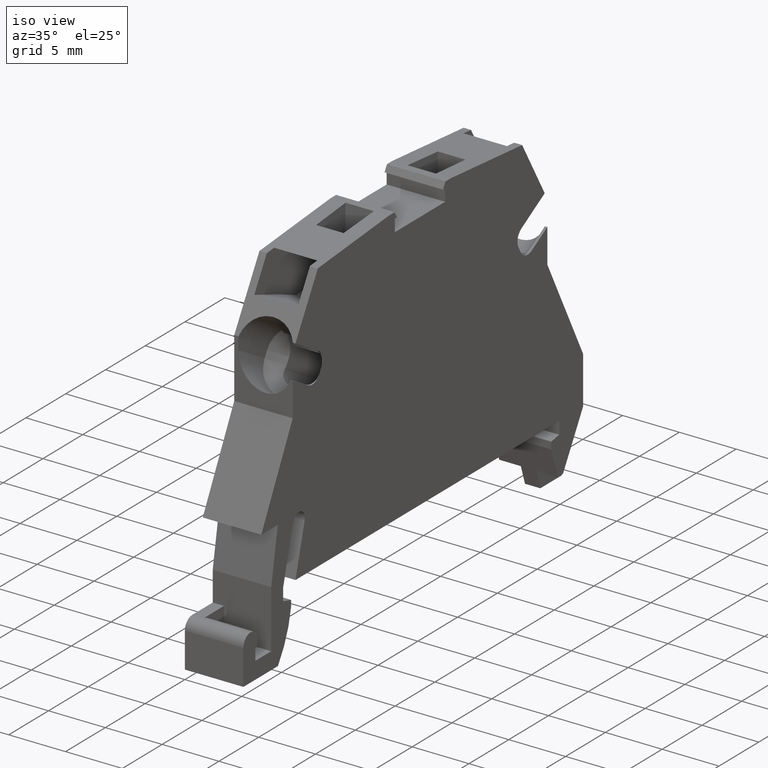
[diagram: clean part render]
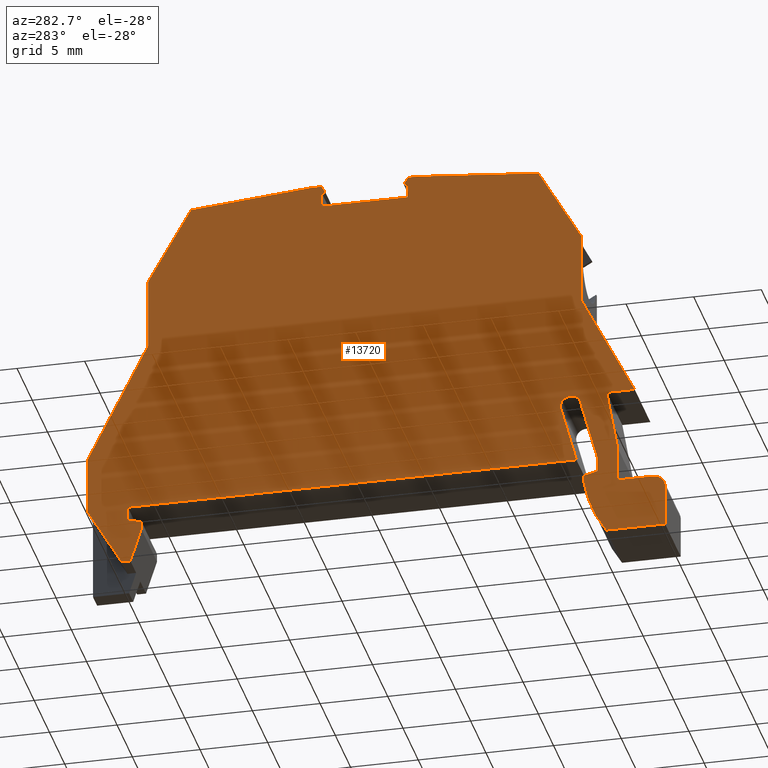
[diagram: tour spotlight — one face highlighted and labeled with its STEP entity id]
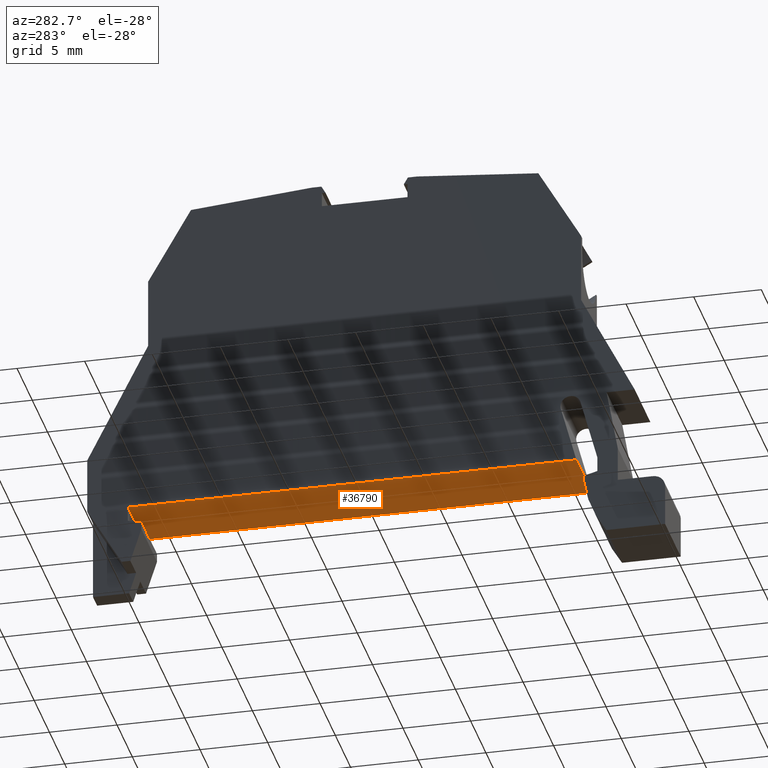
[diagram: tour spotlight — one face highlighted and labeled with its STEP entity id]
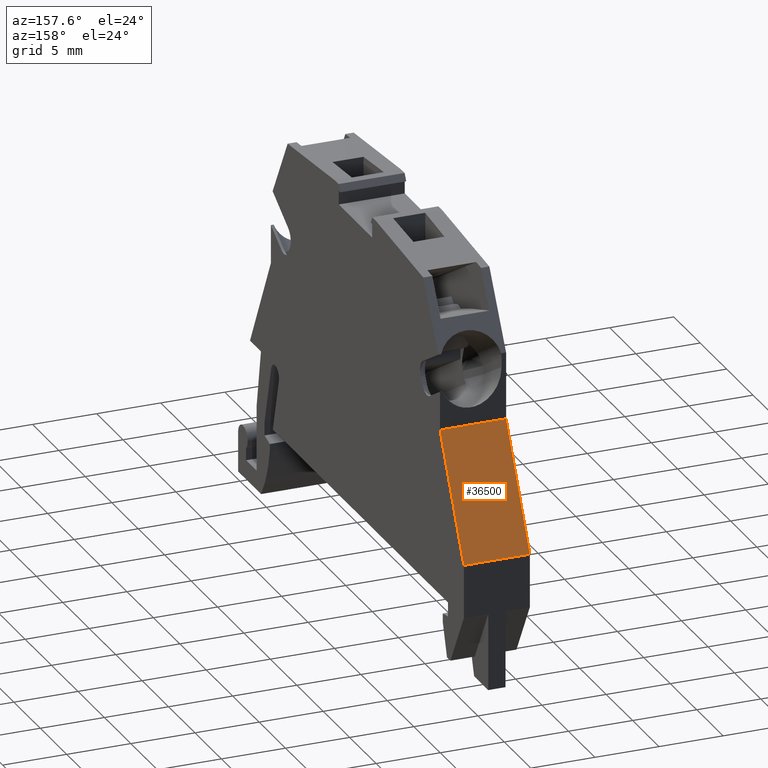
[diagram: tour spotlight — one face highlighted and labeled with its STEP entity id]
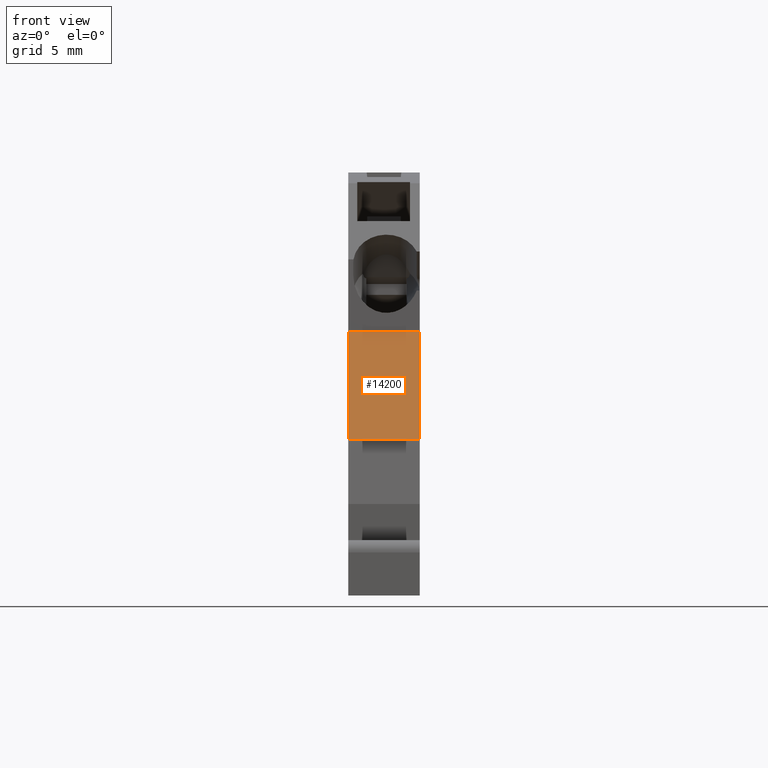
[diagram: tour spotlight — one face highlighted and labeled with its STEP entity id]
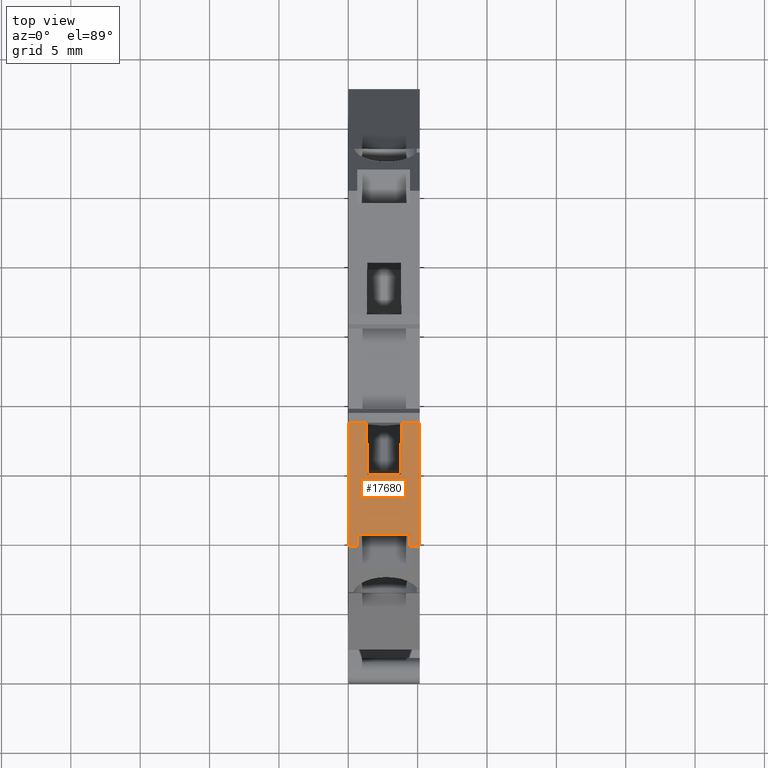
[diagram: tour spotlight — one face highlighted and labeled with its STEP entity id]
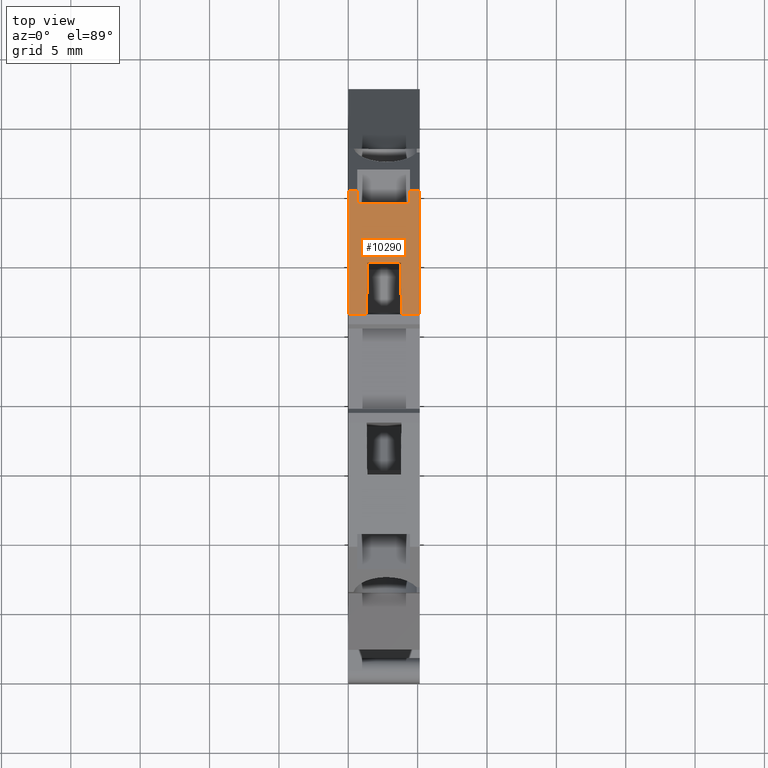
[diagram: tour spotlight — one face highlighted and labeled with its STEP entity id]
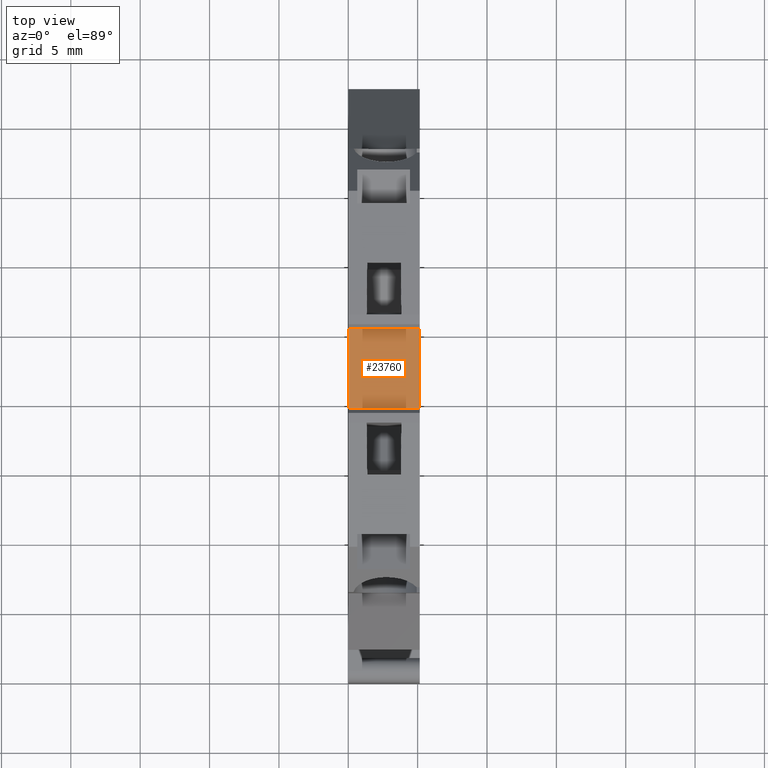
[diagram: tour spotlight — one face highlighted and labeled with its STEP entity id]
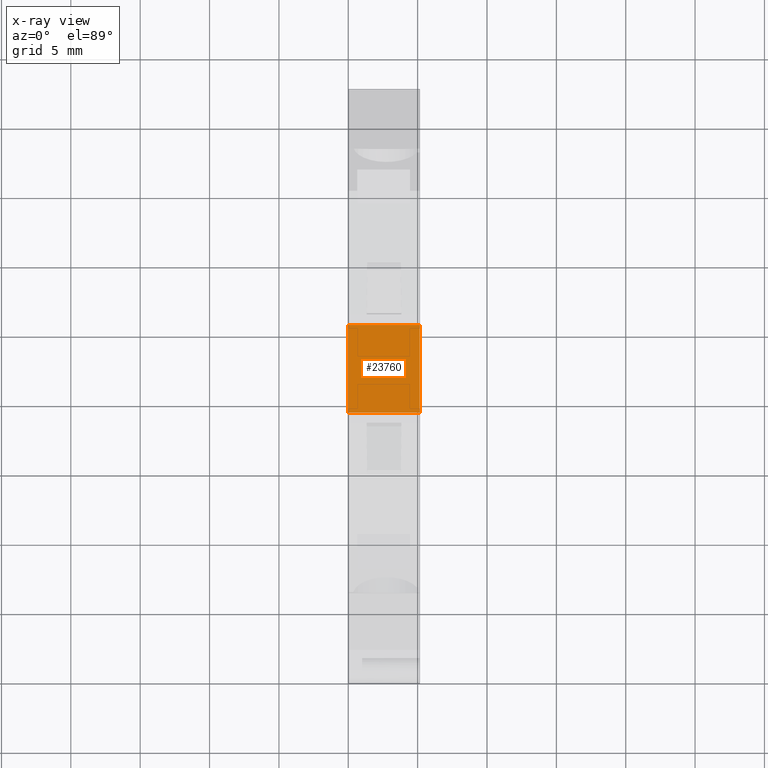
[diagram: x-ray of the same camera — body ghosted, this tour face saturated]
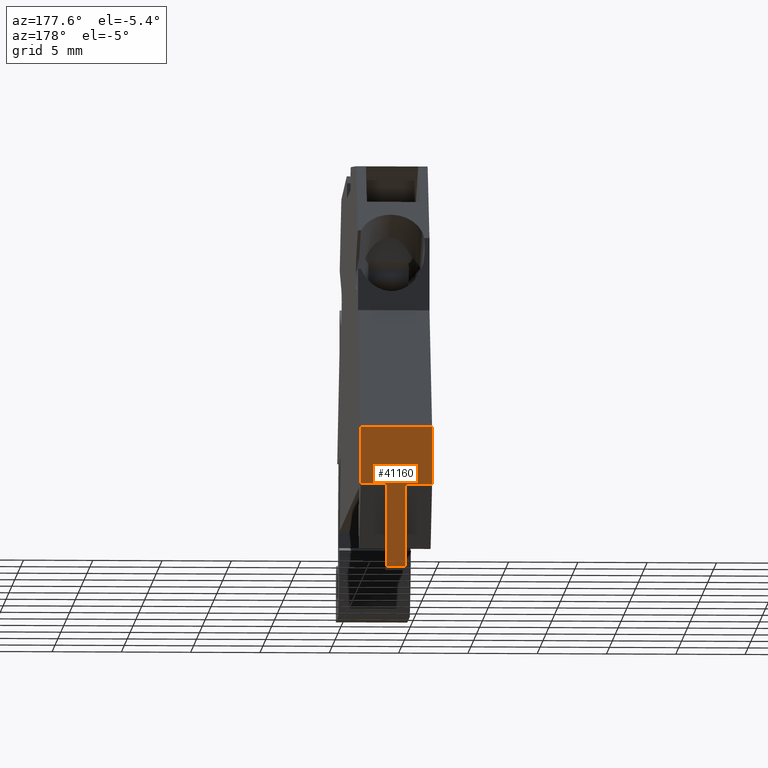
[diagram: tour spotlight — one face highlighted and labeled with its STEP entity id]
A machine part: a face-by-face anatomy tour. The part has 125 B-rep faces; the first image is the clean iso view, then the 8 largest visible faces are spotlighted one at a time (largest first), each with its STEP entity span.

Face 1 — auxiliary view, entity #13720. In plain terms, the highlighted planar face has unit normal (1, -0, 0).
Definition (entity closure, byte-faithful):
#760=CARTESIAN_POINT('',(85.9288839072388,139.943633130587,
14.375000000007));
#770=VERTEX_POINT('',#760);
#800=CARTESIAN_POINT('',(70.3110332415966,137.189784677558,
14.374999999999));
#810=DIRECTION('',(0.984807753012208,0.17364817766693,
5.06342142665721E-13));
#820=VECTOR('',#810,1.);
#830=LINE('',#800,#820);
#840=CARTESIAN_POINT('',(81.2869033162138,139.125126708464,
14.3750000000047));
#850=VERTEX_POINT('',#840);
#860=EDGE_CURVE('',#850,#770,#830,.T.);
#9850=CARTESIAN_POINT('',(62.0288839072381,117.343633130581,
14.3749999999949));
#9860=VERTEX_POINT('',#9850);
#9890=CARTESIAN_POINT('',(62.4208034268893,112.863972522483,
14.3749999999952));
#9900=DIRECTION('',(-0.0871557427474359,0.996194698091765,
-5.46381874115445E-14));
#9910=VECTOR('',#9900,1.);
#9920=LINE('',#9890,#9910);
#9930=CARTESIAN_POINT('',(62.8104688544808,108.410076304523,
14.3749999999954));
#9940=VERTEX_POINT('',#9930);
#9950=EDGE_CURVE('',#9940,#9860,#9920,.T.);
#10480=CARTESIAN_POINT('',(62.0288839072382,118.047445109044,
14.3749999999949));
#10490=VERTEX_POINT('',#10480);
#10520=CARTESIAN_POINT('',(62.0288839072368,112.637697682311,
14.374999999995));
#10530=DIRECTION('',(-2.2815083156047E-13,-1.,9.71445146564682E-15));
#10540=VECTOR('',#10530,1.);
#10550=LINE('',#10520,#10540);
#10560=EDGE_CURVE('',#10490,#9860,#10550,.T.);
#10750=CARTESIAN_POINT('',(67.5229967701355,130.371409375845,
14.3749999999977));
#10760=DIRECTION('',(5.25524068706041E-13,-2.79961151606987E-25,-1.));
#10770=DIRECTION('',(5.25579579857549E-13,-1.,5.56165870842539E-25));
#10780=AXIS2_PLACEMENT_3D('',#10750,#10760,#10770);
#10790=PLANE('',#10780);
#10800=CARTESIAN_POINT('',(81.2869033162523,-12.1795821260373,
14.3750000000061));
#10810=DIRECTION('',(2.5462965069778E-13,-1.,9.71445146589583E-15));
#10820=VECTOR('',#10810,1.);
#10830=LINE('',#10800,#10820);
#10840=CARTESIAN_POINT('',(81.2869033162133,141.196541457125,
14.3750000000046));
#10850=VERTEX_POINT('',#10840);
#10860=EDGE_CURVE('',#10850,#850,#10830,.T.);
#10870=ORIENTED_EDGE('',*,*,#10860,.F.);
#10880=ORIENTED_EDGE('',*,*,#860,.F.);
#10890=CARTESIAN_POINT('',(-23.21922643331,139.943633130545,
14.3749999999507));
#10900=DIRECTION('',(1.,3.81472631261204E-13,5.15866206278215E-13));
#10910=VECTOR('',#10900,1.);
#10920=LINE('',#10890,#10910);
#10930=CARTESIAN_POINT('',(88.5288839072345,139.943633130588,
14.3750000000084));
#10940=VERTEX_POINT('',#10930);
#10950=EDGE_CURVE('',#770,#10940,#10920,.T.);
#10960=ORIENTED_EDGE('',*,*,#10950,.F.);
#10970=CARTESIAN_POINT('',(88.5288839072568,-7.9984226823472,
14.3750000000098));
#10980=DIRECTION('',(-1.50324197534246E-13,1.,-9.71445146584201E-15));
#10990=VECTOR('',#10980,1.);
#11000=LINE('',#10970,#10990);
#11010=CARTESIAN_POINT('',(88.5288839072388,142.543633130588,
14.3750000000084));
#11020=VERTEX_POINT('',#11010);
#11030=EDGE_CURVE('',#10940,#11020,#11000,.T.);
#11040=ORIENTED_EDGE('',*,*,#11030,.F.);
#11050=CARTESIAN_POINT('',(89.4288839072389,142.543633130589,
14.3750000000088));
#11060=DIRECTION('',(5.03237389910914E-13,-2.85605513013457E-25,-1.));
#11070=DIRECTION('',(-1.11022302462516E-16,-1.,2.85555025915523E-25));
#11080=AXIS2_PLACEMENT_3D('',#11050,#11060,#11070);
#11090=CIRCLE('',#11080,0.900000000000114);
#11100=CARTESIAN_POINT('',(89.4288839072389,143.443633130588,
14.3750000000088));
#11110=VERTEX_POINT('',#11100);
#11120=EDGE_CURVE('',#11020,#11110,#11090,.T.);
#11130=ORIENTED_EDGE('',*,*,#11120,.F.);
#11140=CARTESIAN_POINT('',(-25.2399523755023,143.443633130588,
14.3749999999497));
#11150=DIRECTION('',(1.,-1.11022302462516E-16,5.15866206278218E-13));
#11160=VECTOR('',#11150,1.);
#11170=LINE('',#11140,#11160);
#11180=CARTESIAN_POINT('',(92.5288839072389,143.443633130588,
14.3750000000104));
#11190=VERTEX_POINT('',#11180);
#11200=EDGE_CURVE('',#11110,#11190,#11170,.T.);
#11210=ORIENTED_EDGE('',*,*,#11200,.F.);
#11220=CARTESIAN_POINT('',(92.5288839072383,-5.68902160559516,
14.3750000000119));
#11230=DIRECTION('',(-4.05231403988182E-15,-1.,9.71445146576239E-15));
#11240=VECTOR('',#11230,1.);
#11250=LINE('',#11220,#11240);
#11260=CARTESIAN_POINT('',(92.5288839072388,139.102592649176,
14.3750000000103));
#11270=VERTEX_POINT('',#11260);
#11280=EDGE_CURVE('',#11190,#11270,#11250,.T.);
#11290=ORIENTED_EDGE('',*,*,#11280,.F.);
#11300=CARTESIAN_POINT('',(87.0134839072388,146.83760155932,
14.3750000000075));
#11310=DIRECTION('',(5.03237389910914E-13,-2.85605513013457E-25,-1.));
#11320=DIRECTION('',(-1.11022302462516E-16,-1.,2.85555025915523E-25));
#11330=AXIS2_PLACEMENT_3D('',#11300,#11310,#11320);
#11340=CIRCLE('',#11330,9.5);
#11350=CARTESIAN_POINT('',(88.4288839072388,137.443633130588,
14.3750000000082));
#11360=VERTEX_POINT('',#11350);
#11370=EDGE_CURVE('',#11270,#11360,#11340,.T.);
#11380=ORIENTED_EDGE('',*,*,#11370,.F.);
#11390=CARTESIAN_POINT('',(-21.7758507603582,137.443633130588,
14.3749999999515));
#11400=DIRECTION('',(-1.,1.11022302462516E-16,-5.15866206278218E-13));
#11410=VECTOR('',#11400,1.);
#11420=LINE('',#11390,#11410);
#11430=CARTESIAN_POINT('',(87.8968330996699,137.443633130588,
14.3750000000081));
#11440=VERTEX_POINT('',#11430);
#11450=EDGE_CURVE('',#11360,#11440,#11420,.T.);
#11460=ORIENTED_EDGE('',*,*,#11450,.F.);
#11470=CARTESIAN_POINT('',(121.731458357265,11.1710926141889,
14.3750000000268));
#11480=DIRECTION('',(-0.258819045102521,0.965925826289068,
-1.42899438468602E-13));
#11490=VECTOR('',#11480,1.);
#11500=LINE('',#11470,#11490);
#11510=CARTESIAN_POINT('',(87.6288839072396,138.443633130585,
14.3750000000079));
#11520=VERTEX_POINT('',#11510);
#11530=EDGE_CURVE('',#11440,#11520,#11500,.T.);
#11540=ORIENTED_EDGE('',*,*,#11530,.F.);
#11550=CARTESIAN_POINT('',(-22.3532010295472,138.443633130585,
14.3749999999512));
#11560=DIRECTION('',(-1.,1.11022302462516E-16,-5.15866206278218E-13));
#11570=VECTOR('',#11560,1.);
#11580=LINE('',#11550,#11570);
#11590=CARTESIAN_POINT('',(86.5288839072389,138.443633130585,
14.3750000000074));
#11600=VERTEX_POINT('',#11590);
#11610=EDGE_CURVE('',#11520,#11600,#11580,.T.);
#11620=ORIENTED_EDGE('',*,*,#11610,.F.);
#11630=CARTESIAN_POINT('',(-7.76576766500975,113.177457391227,
14.374999999959));
#11640=DIRECTION('',(-0.965925826289068,-0.258819045102521,
-4.95774206501831E-13));
#11650=VECTOR('',#11640,1.);
#11660=LINE('',#11630,#11650);
#11670=CARTESIAN_POINT('',(81.8347696234077,137.185848999053,
14.375000000005));
#11680=VERTEX_POINT('',#11670);
#11690=EDGE_CURVE('',#11600,#11680,#11660,.T.);
#11700=ORIENTED_EDGE('',*,*,#11690,.F.);
#11710=CARTESIAN_POINT('',(82.0288839072346,136.461404629337,
14.3750000000051));
#11720=DIRECTION('',(-5.03237389910914E-13,2.85605513013457E-25,1.));
#11730=DIRECTION('',(-0.258819045102662,0.965925826289031,
-1.30247420716975E-13));
#11740=AXIS2_PLACEMENT_3D('',#11710,#11720,#11730);
#11750=CIRCLE('',#11740,0.750000000000012);
#11760=CARTESIAN_POINT('',(82.2229981910615,135.73696025962,
14.3750000000052));
#11770=VERTEX_POINT('',#11760);
#11780=EDGE_CURVE('',#11680,#11770,#11750,.T.);
#11790=ORIENTED_EDGE('',*,*,#11780,.F.);
#11800=CARTESIAN_POINT('',(-6.98931052970099,111.832594182976,
14.3749999999594));
#11810=DIRECTION('',(0.965925826289068,0.258819045102521,
4.95774206501831E-13));
#11820=VECTOR('',#11810,1.);
#11830=LINE('',#11800,#11820);
#11840=CARTESIAN_POINT('',(86.5288839072389,136.89071885997,
14.3750000000074));
#11850=VERTEX_POINT('',#11840);
#11860=EDGE_CURVE('',#11770,#11850,#11830,.T.);
#11870=ORIENTED_EDGE('',*,*,#11860,.F.);
#11880=CARTESIAN_POINT('',(86.5288839072389,-9.15312322073889,
14.3750000000088));
#11890=DIRECTION('',(-1.11022302462516E-16,-1.,9.71445146576441E-15));
#11900=VECTOR('',#11890,1.);
#11910=LINE('',#11880,#11900);
#11920=CARTESIAN_POINT('',(86.5288839072389,103.743633130585,
14.3750000000077));
#11930=VERTEX_POINT('',#11920);
#11940=EDGE_CURVE('',#11850,#11930,#11910,.T.);
#11950=ORIENTED_EDGE('',*,*,#11940,.F.);
#11960=CARTESIAN_POINT('',(-2.31914668863053,103.743633130585,
14.3749999999619));
#11970=DIRECTION('',(1.,-1.11022302462516E-16,5.15866206278218E-13));
#11980=VECTOR('',#11970,1.);
#11990=LINE('',#11960,#11980);
#12000=CARTESIAN_POINT('',(87.6288839072388,103.743633130585,
14.3750000000083));
#12010=VERTEX_POINT('',#12000);
#12020=EDGE_CURVE('',#11930,#12010,#11990,.T.);
#12030=ORIENTED_EDGE('',*,*,#12020,.F.);
#12040=CARTESIAN_POINT('',(65.5905683264532,-21.2418653577049,
14.3749999999981));
#12050=DIRECTION('',(0.173648177666953,0.984807753012204,
8.00123595204312E-14));
#12060=VECTOR('',#12050,1.);
#12070=LINE('',#12040,#12060);
#12080=CARTESIAN_POINT('',(87.8052108879473,104.743633130585,
14.3750000000083));
#12090=VERTEX_POINT('',#12080);
#12100=EDGE_CURVE('',#12010,#12090,#12070,.T.);
#12110=ORIENTED_EDGE('',*,*,#12100,.F.);
#12120=CARTESIAN_POINT('',(-2.8964969578218,104.743633130586,
14.3749999999616));
#12130=DIRECTION('',(1.,-1.16573417585641E-14,5.15866206278219E-13));
#12140=VECTOR('',#12130,1.);
#12150=LINE('',#12120,#12140);
#12160=CARTESIAN_POINT('',(88.4288839072389,104.743633130585,
14.3750000000087));
#12170=VERTEX_POINT('',#12160);
#12180=EDGE_CURVE('',#12090,#12170,#12150,.T.);
#12190=ORIENTED_EDGE('',*,*,#12180,.F.);
#12200=CARTESIAN_POINT('',(213.446667012653,64.1228930202564,
14.3750000000736));
#12210=DIRECTION('',(0.95105651629514,-0.309016994374991,
4.93619847611305E-13));
#12220=VECTOR('',#12210,1.);
#12230=LINE('',#12200,#12220);
#12240=CARTESIAN_POINT('',(90.9288839072475,103.93133389,14.37500000001)
);
#12250=VERTEX_POINT('',#12240);
#12260=EDGE_CURVE('',#12170,#12250,#12230,.T.);
#12270=ORIENTED_EDGE('',*,*,#12260,.F.);
#12280=CARTESIAN_POINT('',(90.9288839072395,129.323120461923,
14.3750000000097));
#12290=DIRECTION('',(3.14470671725076E-13,-1.,9.71445146592673E-15));
#12300=VECTOR('',#12290,1.);
#12310=LINE('',#12280,#12300);
#12320=CARTESIAN_POINT('',(90.9288839072477,103.283974315021,
14.37500000001));
#12330=VERTEX_POINT('',#12320);
#12340=EDGE_CURVE('',#12250,#12330,#12310,.T.);
#12350=ORIENTED_EDGE('',*,*,#12340,.F.);
#12360=CARTESIAN_POINT('',(90.1471424629641,102.832635681727,
14.3750000000096));
#12370=DIRECTION('',(-0.866025403784281,-0.500000000000273,
-4.41896013857874E-13));
#12380=VECTOR('',#12370,1.);
#12390=LINE('',#12360,#12380);
#12400=CARTESIAN_POINT('',(86.5288839072485,100.743633130585,
14.3750000000077));
#12410=VERTEX_POINT('',#12400);
#12420=EDGE_CURVE('',#12330,#12410,#12390,.T.);
#12430=ORIENTED_EDGE('',*,*,#12420,.F.);
#12440=CARTESIAN_POINT('',(-0.587095881058488,100.743633130585,
14.3749999999628));
#12450=DIRECTION('',(-1.,1.11022302462516E-16,-5.15866206278218E-13));
#12460=VECTOR('',#12450,1.);
#12470=LINE('',#12440,#12460);
#12480=CARTESIAN_POINT('',(82.3606311820096,100.743633130585,
14.3750000000056));
#12490=VERTEX_POINT('',#12480);
#12500=EDGE_CURVE('',#12410,#12490,#12470,.T.);
#12510=ORIENTED_EDGE('',*,*,#12500,.F.);
#12520=CARTESIAN_POINT('',(185.68734669661,48.0960419632388,
14.3750000000594));
#12530=DIRECTION('',(-0.891006524188414,0.453990499739456,
-4.64050424077856E-13));
#12540=VECTOR('',#12530,1.);
#12550=LINE('',#12520,#12540);
#12560=CARTESIAN_POINT('',(73.5288839072387,105.243633130583,
14.375000000001));
#12570=VERTEX_POINT('',#12560);
#12580=EDGE_CURVE('',#12490,#12570,#12550,.T.);
#12590=ORIENTED_EDGE('',*,*,#12580,.F.);
#12600=CARTESIAN_POINT('',(88.7551524368475,105.243633130586,
14.3750000000088));
#12610=DIRECTION('',(-1.,-1.94400051611865E-13,-5.15866206278217E-13));
#12620=VECTOR('',#12610,1.);
#12630=LINE('',#12600,#12620);
#12640=CARTESIAN_POINT('',(68.2949093110267,105.243633130582,
14.3749999999983));
#12650=VERTEX_POINT('',#12640);
#12660=EDGE_CURVE('',#12570,#12650,#12630,.T.);
#12670=ORIENTED_EDGE('',*,*,#12660,.F.);
#12680=CARTESIAN_POINT('',(58.7584488701145,110.749511133258,
14.3749999999933));
#12690=DIRECTION('',(-0.866025403784484,0.499999999999921,
-4.51610465323746E-13));
#12700=VECTOR('',#12690,1.);
#12710=LINE('',#12680,#12700);
#12720=EDGE_CURVE('',#12650,#9940,#12710,.T.);
#12730=ORIENTED_EDGE('',*,*,#12720,.F.);
#12740=ORIENTED_EDGE('',*,*,#9950,.F.);
#12750=ORIENTED_EDGE('',*,*,#10560,.T.);
#12760=CARTESIAN_POINT('',(76.5293720851754,126.419305861821,
14.3750000000023));
#12770=DIRECTION('',(-0.866025403787968,-0.499999999993887,
-4.41896013859838E-13));
#12780=VECTOR('',#12770,1.);
#12790=LINE('',#12760,#12780);
#12800=CARTESIAN_POINT('',(62.5588839072415,118.353440751711,
14.3749999999952));
#12810=VERTEX_POINT('',#12800);
#12820=EDGE_CURVE('',#12810,#10490,#12790,.T.);
#12830=ORIENTED_EDGE('',*,*,#12820,.T.);
#12840=CARTESIAN_POINT('',(62.5588839072385,112.943693324983,
14.3749999999952));
#12850=DIRECTION('',(5.40234523782601E-13,1.,-9.71445146548587E-15));
#12860=VECTOR('',#12850,1.);
#12870=LINE('',#12840,#12860);
#12880=CARTESIAN_POINT('',(62.5588839072413,118.081133130579,
14.3749999999952));
#12890=VERTEX_POINT('',#12880);
#12900=EDGE_CURVE('',#12890,#12810,#12870,.T.);
#12910=ORIENTED_EDGE('',*,*,#12900,.T.);
#12920=CARTESIAN_POINT('',(81.3434183561167,118.081133130578,
14.3750000000049));
#12930=DIRECTION('',(-1.,4.70179450928754E-14,-5.15866206278219E-13));
#12940=VECTOR('',#12930,1.);
#12950=LINE('',#12920,#12940);
#12960=CARTESIAN_POINT('',(63.6288839072413,118.081133130579,
14.3749999999957));
#12970=VERTEX_POINT('',#12960);
#12980=EDGE_CURVE('',#12970,#12890,#12950,.T.);
#12990=ORIENTED_EDGE('',*,*,#12980,.T.);
#13000=CARTESIAN_POINT('',(63.6288839072425,113.561458113019,
14.3749999999958));
#13010=DIRECTION('',(2.55129251058861E-13,-1.,9.71445146589613E-15));
#13020=VECTOR('',#13010,1.);
#13030=LINE('',#13000,#13020);
#13040=CARTESIAN_POINT('',(63.6288839072397,124.406133130583,
14.3749999999957));
#13050=VERTEX_POINT('',#13040);
#13060=EDGE_CURVE('',#13050,#12970,#13030,.T.);
#13070=ORIENTED_EDGE('',*,*,#13060,.T.);
#13080=CARTESIAN_POINT('',(77.6916779034792,124.406133130589,
14.3750000000029));
#13090=DIRECTION('',(1.,4.35651514862911E-13,5.15866206278214E-13));
#13100=VECTOR('',#13090,1.);
#13110=LINE('',#13080,#13100);
#13120=CARTESIAN_POINT('',(62.5588839072401,124.406133130583,
14.3749999999951));
#13130=VERTEX_POINT('',#13120);
#13140=EDGE_CURVE('',#13130,#13050,#13110,.T.);
#13150=ORIENTED_EDGE('',*,*,#13140,.T.);
#13160=CARTESIAN_POINT('',(62.5588839072507,112.94369332499,
14.3749999999952));
#13170=DIRECTION('',(-9.29034627006331E-13,1.,-9.71445146624383E-15));
#13180=VECTOR('',#13170,1.);
#13190=LINE('',#13160,#13180);
#13200=CARTESIAN_POINT('',(62.5588839072404,124.13382550945,
14.3749999999951));
#13210=VERTEX_POINT('',#13200);
#13220=EDGE_CURVE('',#13210,#13130,#13190,.T.);
#13230=ORIENTED_EDGE('',*,*,#13220,.T.);
#13240=CARTESIAN_POINT('',(72.2498226507684,118.53875941727,
14.3750000000002));
#13250=DIRECTION('',(0.866025403788162,-0.499999999993551,
4.51610465325581E-13));
#13260=VECTOR('',#13250,1.);
#13270=LINE('',#13240,#13260);
#13280=CARTESIAN_POINT('',(62.028883907237,124.439821152117,
14.3749999999948));
#13290=VERTEX_POINT('',#13280);
#13300=EDGE_CURVE('',#13290,#13210,#13270,.T.);
#13310=ORIENTED_EDGE('',*,*,#13300,.T.);
#13320=CARTESIAN_POINT('',(62.0288839072443,112.637697682315,
14.374999999995));
#13330=DIRECTION('',(6.16895423632968E-13,-1.,9.71445146608273E-15));
#13340=VECTOR('',#13330,1.);
#13350=LINE('',#13320,#13340);
#13360=CARTESIAN_POINT('',(62.0288839072365,125.143633130578,
14.3749999999949));
#13370=VERTEX_POINT('',#13360);
#13380=EDGE_CURVE('',#13370,#13290,#13350,.T.);
#13390=ORIENTED_EDGE('',*,*,#13380,.T.);
#13400=CARTESIAN_POINT('',(60.8765501004583,111.97239744877,
14.3749999999944));
#13410=DIRECTION('',(-0.0871557427470437,-0.996194698091799,
-3.5283217321213E-14));
#13420=VECTOR('',#13410,1.);
#13430=LINE('',#13400,#13420);
#13440=CARTESIAN_POINT('',(62.8104688544766,134.077189956647,
14.3749999999953));
#13450=VERTEX_POINT('',#13440);
#13460=EDGE_CURVE('',#13450,#13370,#13430,.T.);
#13470=ORIENTED_EDGE('',*,*,#13460,.T.);
#13480=CARTESIAN_POINT('',(69.7836851948095,138.103178287864,
14.3749999999987));
#13490=DIRECTION('',(-0.866025403783959,-0.500000000000831,
-4.41896013857703E-13));
#13500=VECTOR('',#13490,1.);
#13510=LINE('',#13480,#13500);
#13520=CARTESIAN_POINT('',(68.294909311,137.243633130582,14.374999999998
));
#13530=VERTEX_POINT('',#13520);
#13540=EDGE_CURVE('',#13530,#13450,#13510,.T.);
#13550=ORIENTED_EDGE('',*,*,#13540,.T.);
#13560=CARTESIAN_POINT('',(70.2799438227478,137.243633130582,
14.374999999999));
#13570=DIRECTION('',(-1.,-1.94233518158171E-13,-5.15866206278217E-13));
#13580=VECTOR('',#13570,1.);
#13590=LINE('',#13560,#13580);
#13600=CARTESIAN_POINT('',(73.5288839072437,137.243633130583,
14.3750000000007));
#13610=VERTEX_POINT('',#13600);
#13620=EDGE_CURVE('',#13610,#13530,#13590,.T.);
#13630=ORIENTED_EDGE('',*,*,#13620,.T.);
#13640=CARTESIAN_POINT('',(-0.0232168194473985,99.7669659465524,
14.3749999999631));
#13650=DIRECTION('',(0.891006524188349,0.453990499739584,
4.55229886726547E-13));
#13660=VECTOR('',#13650,1.);
#13670=LINE('',#13640,#13660);
#13680=EDGE_CURVE('',#13610,#10850,#13670,.T.);
#13690=ORIENTED_EDGE('',*,*,#13680,.F.);
#13700=EDGE_LOOP('',(#13690,#13630,#13550,#13470,#13390,#13310,#13230,
#13150,#13070,#12990,#12910,#12830,#12750,#12740,#12730,#12670,#12590,
#12510,#12430,#12350,#12270,#12190,#12110,#12030,#11950,#11870,#11790,
#11700,#11620,#11540,#11460,#11380,#11290,#11210,#11130,#11040,#10960,
#10880,#10870));
#13710=FACE_OUTER_BOUND('',#13700,.T.);
#13720=ADVANCED_FACE('',(#13710),#10790,.F.);

Face 2 — auxiliary view, entity #36790. In plain terms, the highlighted planar face has unit normal (-0, -0, 1).
Definition (entity closure, byte-faithful):
#4440=CARTESIAN_POINT('',(86.5288839072415,103.743633130585,
9.22500000000719));
#4450=VERTEX_POINT('',#4440);
#4480=CARTESIAN_POINT('',(86.5288839072415,127.198249331305,
9.22500000000722));
#4490=DIRECTION('',(5.55111512312578E-17,1.,-2.85656000111391E-25));
#4500=VECTOR('',#4490,1.);
#4510=LINE('',#4480,#4500);
#4520=CARTESIAN_POINT('',(86.5288839072415,136.89071885997,
9.22500000000687));
#4530=VERTEX_POINT('',#4520);
#4540=EDGE_CURVE('',#4450,#4530,#4510,.T.);
#11840=CARTESIAN_POINT('',(86.5288839072389,136.89071885997,
14.3750000000074));
#11850=VERTEX_POINT('',#11840);
#11880=CARTESIAN_POINT('',(86.5288839072389,-9.15312322073889,
14.3750000000088));
#11890=DIRECTION('',(-1.11022302462516E-16,-1.,9.71445146576441E-15));
#11900=VECTOR('',#11890,1.);
#11910=LINE('',#11880,#11900);
#11920=CARTESIAN_POINT('',(86.5288839072389,103.743633130585,
14.3750000000077));
#11930=VERTEX_POINT('',#11920);
#11940=EDGE_CURVE('',#11850,#11930,#11910,.T.);
#36580=CARTESIAN_POINT('',(86.5288839072415,103.743633130585,
9.22500000000721));
#36590=DIRECTION('',(-1.,5.55111512312578E-17,-5.03237389910914E-13));
#36600=DIRECTION('',(-5.55111512312578E-17,-1.,2.85656000111391E-25));
#36610=AXIS2_PLACEMENT_3D('',#36580,#36590,#36600);
#36620=PLANE('',#36610);
#36630=ORIENTED_EDGE('',*,*,#4540,.T.);
#36640=CARTESIAN_POINT('',(86.5288839072438,103.743633130585,
4.4750000000077));
#36650=DIRECTION('',(-5.03237389910914E-13,2.85605513013457E-25,1.));
#36660=VECTOR('',#36650,1.);
#36670=LINE('',#36640,#36660);
#36680=EDGE_CURVE('',#4450,#11930,#36670,.T.);
#36690=ORIENTED_EDGE('',*,*,#36680,.F.);
#36700=ORIENTED_EDGE('',*,*,#11940,.T.);
#36710=CARTESIAN_POINT('',(86.5288839072439,136.89071885997,
4.47500000000738));
#36720=DIRECTION('',(-5.03237389910914E-13,2.85605513013457E-25,1.));
#36730=VECTOR('',#36720,1.);
#36740=LINE('',#36710,#36730);
#36750=EDGE_CURVE('',#4530,#11850,#36740,.T.);
#36760=ORIENTED_EDGE('',*,*,#36750,.T.);
#36770=EDGE_LOOP('',(#36760,#36700,#36690,#36630));
#36780=FACE_OUTER_BOUND('',#36770,.T.);
#36790=ADVANCED_FACE('',(#36780),#36620,.F.);

Face 3 — auxiliary view, entity #36500. In plain terms, the highlighted planar face has unit normal (0, -0.891, -0.454).
Definition (entity closure, byte-faithful):
#3800=CARTESIAN_POINT('',(73.5288839072413,105.243633130583,
9.22500000000076));
#3810=VERTEX_POINT('',#3800);
#3840=CARTESIAN_POINT('',(60.1285176052663,112.071460793985,
9.22499999999393));
#3850=DIRECTION('',(-0.891006524188415,0.453990499739456,
-4.48387797626303E-13));
#3860=VECTOR('',#3850,1.);
#3870=LINE('',#3840,#3860);
#3880=CARTESIAN_POINT('',(82.3606311820121,100.743633130585,
9.22500000000517));
#3890=VERTEX_POINT('',#3880);
#3900=EDGE_CURVE('',#3890,#3810,#3870,.T.);
#12480=CARTESIAN_POINT('',(82.3606311820096,100.743633130585,
14.3750000000056));
#12490=VERTEX_POINT('',#12480);
#12520=CARTESIAN_POINT('',(185.68734669661,48.0960419632388,
14.3750000000594));
#12530=DIRECTION('',(-0.891006524188414,0.453990499739456,
-4.64050424077856E-13));
#12540=VECTOR('',#12530,1.);
#12550=LINE('',#12520,#12540);
#12560=CARTESIAN_POINT('',(73.5288839072387,105.243633130583,
14.375000000001));
#12570=VERTEX_POINT('',#12560);
#12580=EDGE_CURVE('',#12490,#12570,#12550,.T.);
#36290=CARTESIAN_POINT('',(73.5288839072413,105.243633130583,
9.22500000000067));
#36300=DIRECTION('',(0.453990499739456,0.891006524188414,
2.28464994132981E-13));
#36310=DIRECTION('',(-0.891006524188415,0.453990499739456,
-4.48387797626303E-13));
#36320=AXIS2_PLACEMENT_3D('',#36290,#36300,#36310);
#36330=PLANE('',#36320);
#36340=ORIENTED_EDGE('',*,*,#3900,.F.);
#36350=CARTESIAN_POINT('',(73.5288839072439,105.243633130583,
4.37500000000098));
#36360=DIRECTION('',(5.22295566962481E-13,-9.71062622902732E-15,-1.));
#36370=VECTOR('',#36360,1.);
#36380=LINE('',#36350,#36370);
#36390=EDGE_CURVE('',#12570,#3810,#36380,.T.);
#36400=ORIENTED_EDGE('',*,*,#36390,.T.);
#36410=ORIENTED_EDGE('',*,*,#12580,.T.);
#36420=CARTESIAN_POINT('',(82.3606311820146,100.743633130585,
4.47500000000558));
#36430=DIRECTION('',(-5.03237389910914E-13,2.85605513013457E-25,1.));
#36440=VECTOR('',#36430,1.);
#36450=LINE('',#36420,#36440);
#36460=EDGE_CURVE('',#3890,#12490,#36450,.T.);
#36470=ORIENTED_EDGE('',*,*,#36460,.T.);
#36480=EDGE_LOOP('',(#36470,#36410,#36400,#36340));
#36490=FACE_OUTER_BOUND('',#36480,.T.);
#36500=ADVANCED_FACE('',(#36490),#36330,.F.);

Face 4 — front view, entity #14200. In plain terms, the highlighted planar face has unit normal (0, 0.891, -0.454).
Definition (entity closure, byte-faithful):
#1680=CARTESIAN_POINT('',(81.2869033162158,141.196541457125,
9.22500000000424));
#1690=VERTEX_POINT('',#1680);
#1720=CARTESIAN_POINT('',(70.8468876131945,135.877087763314,
9.22499999999932));
#1730=DIRECTION('',(-0.891006524188349,-0.453990499739584,
-4.4838779762601E-13));
#1740=VECTOR('',#1730,1.);
#1750=LINE('',#1720,#1740);
#1760=CARTESIAN_POINT('',(73.5288839072462,137.243633130583,
9.22500000000045));
#1770=VERTEX_POINT('',#1760);
#1780=EDGE_CURVE('',#1690,#1770,#1750,.T.);
#10840=CARTESIAN_POINT('',(81.2869033162133,141.196541457125,
14.3750000000046));
#10850=VERTEX_POINT('',#10840);
#13600=CARTESIAN_POINT('',(73.5288839072437,137.243633130583,
14.3750000000007));
#13610=VERTEX_POINT('',#13600);
#13640=CARTESIAN_POINT('',(-0.0232168194473985,99.7669659465524,
14.3749999999631));
#13650=DIRECTION('',(0.891006524188349,0.453990499739584,
4.55229886726547E-13));
#13660=VECTOR('',#13650,1.);
#13670=LINE('',#13640,#13660);
#13680=EDGE_CURVE('',#13610,#10850,#13670,.T.);
#13880=CARTESIAN_POINT('',(81.2869033162182,141.196541457125,
4.47500000000463));
#13890=DIRECTION('',(-4.9357952748309E-13,9.71445146577014E-15,1.));
#13900=VECTOR('',#13890,1.);
#13910=LINE('',#13880,#13900);
#13920=EDGE_CURVE('',#1690,#10850,#13910,.T.);
#14040=CARTESIAN_POINT('',(79.8329128164767,140.455696294185,
9.22500000000385));
#14050=DIRECTION('',(0.453990499739584,-0.891006524188349,
2.28464994133554E-13));
#14060=DIRECTION('',(0.891006524188349,0.453990499739584,
4.4838779762601E-13));
#14070=AXIS2_PLACEMENT_3D('',#14040,#14050,#14060);
#14080=PLANE('',#14070);
#14090=ORIENTED_EDGE('',*,*,#1780,.T.);
#14100=ORIENTED_EDGE('',*,*,#13920,.F.);
#14110=ORIENTED_EDGE('',*,*,#13680,.T.);
#14120=CARTESIAN_POINT('',(73.5288839072484,137.243633130583,
4.37500000000067));
#14130=DIRECTION('',(4.84179212859339E-13,-9.71062622903474E-15,-1.));
#14140=VECTOR('',#14130,1.);
#14150=LINE('',#14120,#14140);
#14160=EDGE_CURVE('',#13610,#1770,#14150,.T.);
#14170=ORIENTED_EDGE('',*,*,#14160,.F.);
#14180=EDGE_LOOP('',(#14170,#14110,#14100,#14090));
#14190=FACE_OUTER_BOUND('',#14180,.T.);
#14200=ADVANCED_FACE('',(#14190),#14080,.F.);

Face 5 — top view, entity #17680. In plain terms, the highlighted planar face has unit normal (0, 0.0872, -0.9962).
Definition (entity closure, byte-faithful):
#2340=CARTESIAN_POINT('',(62.8104688544793,134.077189956647,
9.22499999999528));
#2350=VERTEX_POINT('',#2340);
#2380=CARTESIAN_POINT('',(60.876550100461,111.97239744877,
9.22499999999445));
#2390=DIRECTION('',(0.0871557427470437,0.996194698091799,
3.32848158768877E-14));
#2400=VECTOR('',#2390,1.);
#2410=LINE('',#2380,#2400);
#2420=CARTESIAN_POINT('',(62.0288839072392,125.143633130578,
9.22499999999489));
#2430=VERTEX_POINT('',#2420);
#2440=EDGE_CURVE('',#2430,#2350,#2410,.T.);
#13360=CARTESIAN_POINT('',(62.0288839072365,125.143633130578,
14.3749999999949));
#13370=VERTEX_POINT('',#13360);
#13400=CARTESIAN_POINT('',(60.8765501004583,111.97239744877,
14.3749999999944));
#13410=DIRECTION('',(-0.0871557427470437,-0.996194698091799,
-3.5283217321213E-14));
#13420=VECTOR('',#13410,1.);
#13430=LINE('',#13400,#13420);
#13440=CARTESIAN_POINT('',(62.8104688544766,134.077189956647,
14.3749999999953));
#13450=VERTEX_POINT('',#13440);
#13460=EDGE_CURVE('',#13450,#13370,#13430,.T.);
#16830=CARTESIAN_POINT('',(62.0288839072392,125.143633130579,
9.22499999999486));
#16840=DIRECTION('',(0.996194698091799,-0.0871557427470438,
5.14749617543061E-13));
#16850=DIRECTION('',(0.0871557427470439,0.9961946980918,
3.52889567695953E-14));
#16860=AXIS2_PLACEMENT_3D('',#16830,#16840,#16850);
#16870=PLANE('',#16860);
#16880=CARTESIAN_POINT('',(62.3569845763133,128.893840938664,
4.37499999999499));
#16890=DIRECTION('',(4.89469757696912E-13,-3.11424573913578E-13,-1.));
#16900=VECTOR('',#16890,1.);
#16910=LINE('',#16880,#16900);
#16920=CARTESIAN_POINT('',(62.3569845763087,128.893840938663,
13.0097143034122));
#16930=VERTEX_POINT('',#16920);
#16940=CARTESIAN_POINT('',(62.35698457631,128.893840938663,
10.5902856965804));
#16950=VERTEX_POINT('',#16940);
#16960=EDGE_CURVE('',#16930,#16950,#16910,.T.);
#16970=ORIENTED_EDGE('',*,*,#16960,.F.);
#16980=CARTESIAN_POINT('',(60.925472489192,112.531582910752,
10.4145181135396));
#16990=DIRECTION('',(-0.0871507526584829,-0.996137661118617,
-0.010700766897338));
#17000=VECTOR('',#16990,1.);
#17010=LINE('',#16980,#17000);
#17020=CARTESIAN_POINT('',(62.0288839072388,125.143633130581,
10.5499999999973));
#17030=VERTEX_POINT('',#17020);
#17040=EDGE_CURVE('',#16950,#17030,#17010,.T.);
#17050=ORIENTED_EDGE('',*,*,#17040,.F.);
#17060=CARTESIAN_POINT('',(62.0288839072417,125.143633130578,
4.37499999999486));
#17070=DIRECTION('',(5.15866206278219E-13,-9.71178601994277E-15,-1.));
#17080=VECTOR('',#17070,1.);
#17090=LINE('',#17060,#17080);
#17100=EDGE_CURVE('',#17030,#2430,#17090,.T.);
#17110=ORIENTED_EDGE('',*,*,#17100,.F.);
#17120=ORIENTED_EDGE('',*,*,#2440,.F.);
#17130=CARTESIAN_POINT('',(62.8104688544818,134.077189956647,
4.37499999999517));
#17140=DIRECTION('',(-5.15865622507448E-13,9.71845855039264E-15,1.));
#17150=VECTOR('',#17140,1.);
#17160=LINE('',#17130,#17150);
#17170=CARTESIAN_POINT('',(62.8104688544789,134.077189956647,
9.92499999999518));
#17180=VERTEX_POINT('',#17170);
#17190=EDGE_CURVE('',#2350,#17180,#17160,.T.);
#17200=ORIENTED_EDGE('',*,*,#17190,.F.);
#17210=CARTESIAN_POINT('',(60.8765501004606,111.97239744877,
9.92500000000085));
#17220=DIRECTION('',(-0.0871557427470437,-0.996194698091799,
2.67641134947761E-13));
#17230=VECTOR('',#17220,1.);
#17240=LINE('',#17210,#17230);
#17250=CARTESIAN_POINT('',(62.7302259606573,133.160009483334,
9.92499999999514));
#17260=VERTEX_POINT('',#17250);
#17270=EDGE_CURVE('',#17180,#17260,#17240,.T.);
#17280=ORIENTED_EDGE('',*,*,#17270,.F.);
#17290=CARTESIAN_POINT('',(62.7302259606596,133.160009483328,
4.37499999999514));
#17300=DIRECTION('',(-4.93973769169686E-13,2.59943487207171E-13,1.));
#17310=VECTOR('',#17300,1.);
#17320=LINE('',#17290,#17310);
#17330=CARTESIAN_POINT('',(62.730225960655,133.160009483331,
13.7249999999951));
#17340=VERTEX_POINT('',#17330);
#17350=EDGE_CURVE('',#17260,#17340,#17320,.T.);
#17360=ORIENTED_EDGE('',*,*,#17350,.F.);
#17370=CARTESIAN_POINT('',(60.8765501004587,111.97239744877,
13.7250000000009));
#17380=DIRECTION('',(0.0871557427470437,0.996194698091799,
-2.67641134947761E-13));
#17390=VECTOR('',#17380,1.);
#17400=LINE('',#17370,#17390);
#17410=CARTESIAN_POINT('',(62.8104688544771,134.077189956648,
13.7249999999952));
#17420=VERTEX_POINT('',#17410);
#17430=EDGE_CURVE('',#17340,#17420,#17400,.T.);
#17440=ORIENTED_EDGE('',*,*,#17430,.F.);
#17450=CARTESIAN_POINT('',(62.8104688544818,134.077189956647,
4.37499999999517));
#17460=DIRECTION('',(5.15865622507448E-13,-9.71845855039264E-15,-1.));
#17470=VECTOR('',#17460,1.);
#17480=LINE('',#17450,#17470);
#17490=EDGE_CURVE('',#13450,#17420,#17480,.T.);
#17500=ORIENTED_EDGE('',*,*,#17490,.T.);
#17510=ORIENTED_EDGE('',*,*,#13460,.F.);
#17520=CARTESIAN_POINT('',(62.0288839072417,125.143633130578,
4.37499999999486));
#17530=DIRECTION('',(5.15866206278219E-13,-9.71178601994277E-15,-1.));
#17540=VECTOR('',#17530,1.);
#17550=LINE('',#17520,#17540);
#17560=CARTESIAN_POINT('',(62.0288839072375,125.143633130581,
13.0499999999973));
#17570=VERTEX_POINT('',#17560);
#17580=EDGE_CURVE('',#13370,#17570,#17550,.T.);
#17590=ORIENTED_EDGE('',*,*,#17580,.F.);
#17600=CARTESIAN_POINT('',(60.9254724891906,112.531582910752,
13.1854818864618));
#17610=DIRECTION('',(0.0871507526584934,0.996137661118611,
-0.0107007668978732));
#17620=VECTOR('',#17610,1.);
#17630=LINE('',#17600,#17620);
#17640=EDGE_CURVE('',#17570,#16930,#17630,.T.);
#17650=ORIENTED_EDGE('',*,*,#17640,.F.);
#17660=EDGE_LOOP('',(#17650,#17590,#17510,#17500,#17440,#17360,#17280,
#17200,#17120,#17110,#17050,#16970));
#17670=FACE_OUTER_BOUND('',#17660,.T.);
#17680=ADVANCED_FACE('',(#17670),#16870,.F.);

Face 6 — top view, entity #10290. In plain terms, the highlighted planar face has unit normal (-0, 0.0872, 0.9962).
Definition (entity closure, byte-faithful):
#3140=CARTESIAN_POINT('',(62.0288839072407,117.343633130581,
9.22499999999489));
#3150=VERTEX_POINT('',#3140);
#3180=CARTESIAN_POINT('',(62.4208034268919,112.863972522483,
9.22499999999521));
#3190=DIRECTION('',(-0.0871557427474359,0.996194698091765,
-5.26952971184505E-14));
#3200=VECTOR('',#3190,1.);
#3210=LINE('',#3180,#3200);
#3220=CARTESIAN_POINT('',(62.8104688544835,108.410076304523,
9.22499999999528));
#3230=VERTEX_POINT('',#3220);
#3240=EDGE_CURVE('',#3230,#3150,#3210,.T.);
#6070=CARTESIAN_POINT('',(62.7302259606598,109.327256777828,
13.7249999999954));
#6080=VERTEX_POINT('',#6070);
#6110=CARTESIAN_POINT('',(62.4208034268896,112.863972522483,
13.7249999999963));
#6120=DIRECTION('',(-0.0871557427474359,0.996194698091765,
2.48286164857429E-13));
#6130=VECTOR('',#6120,1.);
#6140=LINE('',#6110,#6130);
#6150=CARTESIAN_POINT('',(62.8104688544812,108.410076304523,
13.7249999999954));
#6160=VERTEX_POINT('',#6150);
#6170=EDGE_CURVE('',#6160,#6080,#6140,.T.);
#8570=CARTESIAN_POINT('',(62.8104688544831,108.410076304523,
9.92499999999543));
#8580=VERTEX_POINT('',#8570);
#8610=CARTESIAN_POINT('',(62.4208034268916,112.863972522483,
9.92499999999627));
#8620=DIRECTION('',(0.0871557427474359,-0.996194698091765,
-2.48286164857429E-13));
#8630=VECTOR('',#8620,1.);
#8640=LINE('',#8610,#8630);
#8650=CARTESIAN_POINT('',(62.7302259606617,109.327256777829,
9.92499999999538));
#8660=VERTEX_POINT('',#8650);
#8670=EDGE_CURVE('',#8660,#8580,#8640,.T.);
#9420=CARTESIAN_POINT('',(62.7302259606644,109.327256777831,
4.37499999999537));
#9430=DIRECTION('',(4.93973971678696E-13,2.40514935031745E-13,-1.));
#9440=VECTOR('',#9430,1.);
#9450=LINE('',#9420,#9440);
#9460=EDGE_CURVE('',#6080,#8660,#9450,.T.);
#9580=CARTESIAN_POINT('',(62.5007817020186,111.949816654668,
14.3749999999952));
#9590=DIRECTION('',(-0.996194698091765,-0.0871557427474359,
-5.13056509386191E-13));
#9600=DIRECTION('',(-0.0871557427474359,0.996194698091765,
-5.46381874115446E-14));
#9610=AXIS2_PLACEMENT_3D('',#9580,#9590,#9600);
#9620=PLANE('',#9610);
#9630=CARTESIAN_POINT('',(62.3569845763161,113.593425322497,
4.37499999999514));
#9640=DIRECTION('',(-4.89469989121697E-13,-2.91995691229094E-13,1.));
#9650=VECTOR('',#9640,1.);
#9660=LINE('',#9630,#9650);
#9670=CARTESIAN_POINT('',(62.3569845763124,113.593425322504,
10.5902856965805));
#9680=VERTEX_POINT('',#9670);
#9690=CARTESIAN_POINT('',(62.3569845763111,113.593425322504,
13.0097143034124));
#9700=VERTEX_POINT('',#9690);
#9710=EDGE_CURVE('',#9680,#9700,#9660,.T.);
#9720=ORIENTED_EDGE('',*,*,#9710,.F.);
#9730=CARTESIAN_POINT('',(62.3765856949954,113.369383510749,
13.0073075886615));
#9740=DIRECTION('',(-0.0871507526588856,0.996137661118576,
0.0107007668978538));
#9750=VECTOR('',#9740,1.);
#9760=LINE('',#9730,#9750);
#9770=CARTESIAN_POINT('',(62.0288839072404,117.343633130562,
13.0499999999972));
#9780=VERTEX_POINT('',#9770);
#9790=EDGE_CURVE('',#9700,#9780,#9760,.T.);
#9800=ORIENTED_EDGE('',*,*,#9790,.F.);
#9810=CARTESIAN_POINT('',(62.0288839072432,117.343633130581,
4.37499999999486));
#9820=DIRECTION('',(-5.15866206278219E-13,9.71445146577453E-15,1.));
#9830=VECTOR('',#9820,1.);
#9840=LINE('',#9810,#9830);
#9850=CARTESIAN_POINT('',(62.0288839072381,117.343633130581,
14.3749999999949));
#9860=VERTEX_POINT('',#9850);
#9870=EDGE_CURVE('',#9780,#9860,#9840,.T.);
#9880=ORIENTED_EDGE('',*,*,#9870,.F.);
#9890=CARTESIAN_POINT('',(62.4208034268893,112.863972522483,
14.3749999999952));
#9900=DIRECTION('',(-0.0871557427474359,0.996194698091765,
-5.46381874115445E-14));
#9910=VECTOR('',#9900,1.);
#9920=LINE('',#9890,#9910);
#9930=CARTESIAN_POINT('',(62.8104688544808,108.410076304523,
14.3749999999954));
#9940=VERTEX_POINT('',#9930);
#9950=EDGE_CURVE('',#9940,#9860,#9920,.T.);
#9960=ORIENTED_EDGE('',*,*,#9950,.T.);
#9970=CARTESIAN_POINT('',(62.810468854486,108.410076304522,
4.37499999999542));
#9980=DIRECTION('',(5.15865868109493E-13,-9.710586179543E-15,-1.));
#9990=VECTOR('',#9980,1.);
#10000=LINE('',#9970,#9990);
#10010=EDGE_CURVE('',#9940,#6160,#10000,.T.);
#10020=ORIENTED_EDGE('',*,*,#10010,.F.);
#10030=ORIENTED_EDGE('',*,*,#6170,.F.);
#10040=ORIENTED_EDGE('',*,*,#9460,.F.);
#10050=ORIENTED_EDGE('',*,*,#8670,.F.);
#10060=CARTESIAN_POINT('',(62.810468854486,108.410076304522,
4.37499999999542));
#10070=DIRECTION('',(-5.15865868109493E-13,9.710586179543E-15,1.));
#10080=VECTOR('',#10070,1.);
#10090=LINE('',#10060,#10080);
#10100=EDGE_CURVE('',#3230,#8580,#10090,.T.);
#10110=ORIENTED_EDGE('',*,*,#10100,.T.);
#10120=ORIENTED_EDGE('',*,*,#3240,.F.);
#10130=CARTESIAN_POINT('',(62.0288839072432,117.343633130581,
4.37499999999486));
#10140=DIRECTION('',(-5.15866206278219E-13,9.71445146577453E-15,1.));
#10150=VECTOR('',#10140,1.);
#10160=LINE('',#10130,#10150);
#10170=CARTESIAN_POINT('',(62.02888390724,117.343633130581,
10.5499999999973));
#10180=VERTEX_POINT('',#10170);
#10190=EDGE_CURVE('',#3150,#10180,#10160,.T.);
#10200=ORIENTED_EDGE('',*,*,#10190,.F.);
#10210=CARTESIAN_POINT('',(62.3765856949966,113.369383510749,
10.5926924113313));
#10220=DIRECTION('',(0.0871507526588751,-0.996137661118583,
0.0107007668973574));
#10230=VECTOR('',#10220,1.);
#10240=LINE('',#10210,#10230);
#10250=EDGE_CURVE('',#10180,#9680,#10240,.T.);
#10260=ORIENTED_EDGE('',*,*,#10250,.F.);
#10270=EDGE_LOOP('',(#10260,#10200,#10120,#10110,#10050,#10040,#10030,
#10020,#9960,#9880,#9800,#9720));
#10280=FACE_OUTER_BOUND('',#10270,.T.);
#10290=ADVANCED_FACE('',(#10280),#9620,.T.);

Face 7 — top view, entity #23760. An x-ray twin of the same camera follows (body ghosted, this face saturated) — the face is partly hidden behind the body. In plain terms, the highlighted planar face has unit normal (-0, -0, 1).
Definition (entity closure, byte-faithful):
#2740=CARTESIAN_POINT('',(63.6288839072423,124.406133130583,
9.22499999999569));
#2750=VERTEX_POINT('',#2740);
#2780=CARTESIAN_POINT('',(63.628883907245,113.561458113019,
9.2249999999958));
#2790=DIRECTION('',(-2.55129251058861E-13,1.,-9.76996261712739E-15));
#2800=VECTOR('',#2790,1.);
#2810=LINE('',#2780,#2800);
#2820=CARTESIAN_POINT('',(63.6288839072439,118.081133130579,
9.22499999999575));
#2830=VERTEX_POINT('',#2820);
#2840=EDGE_CURVE('',#2830,#2750,#2810,.T.);
#12960=CARTESIAN_POINT('',(63.6288839072413,118.081133130579,
14.3749999999957));
#12970=VERTEX_POINT('',#12960);
#13000=CARTESIAN_POINT('',(63.6288839072425,113.561458113019,
14.3749999999958));
#13010=DIRECTION('',(2.55129251058861E-13,-1.,9.71445146589613E-15));
#13020=VECTOR('',#13010,1.);
#13030=LINE('',#13000,#13020);
#13040=CARTESIAN_POINT('',(63.6288839072397,124.406133130583,
14.3749999999957));
#13050=VERTEX_POINT('',#13040);
#13060=EDGE_CURVE('',#13050,#12970,#13030,.T.);
#23550=CARTESIAN_POINT('',(63.6288839072409,118.830776485051,
14.8900023999957));
#23560=DIRECTION('',(-1.,-2.55018228756399E-13,-4.93579527483088E-13));
#23570=DIRECTION('',(2.55018228756398E-13,-1.,2.22705725930534E-15));
#23580=AXIS2_PLACEMENT_3D('',#23550,#23560,#23570);
#23590=PLANE('',#23580);
#23600=ORIENTED_EDGE('',*,*,#2840,.F.);
#23610=CARTESIAN_POINT('',(63.6288839072447,124.406133130583,
4.37499999999569));
#23620=DIRECTION('',(-4.9357952748309E-13,9.7144514657742E-15,1.));
#23630=VECTOR('',#23620,1.);
#23640=LINE('',#23610,#23630);
#23650=EDGE_CURVE('',#2750,#13050,#23640,.T.);
#23660=ORIENTED_EDGE('',*,*,#23650,.F.);
#23670=ORIENTED_EDGE('',*,*,#13060,.F.);
#23680=CARTESIAN_POINT('',(63.6288839072463,118.081133130579,
4.37499999999575));
#23690=DIRECTION('',(4.93579527483092E-13,-1.71941951988828E-14,-1.));
#23700=VECTOR('',#23690,1.);
#23710=LINE('',#23680,#23700);
#23720=EDGE_CURVE('',#12970,#2830,#23710,.T.);
#23730=ORIENTED_EDGE('',*,*,#23720,.F.);
#23740=EDGE_LOOP('',(#23730,#23670,#23660,#23600));
#23750=FACE_OUTER_BOUND('',#23740,.T.);
#23760=ADVANCED_FACE('',(#23750),#23590,.T.);

Face 8 — auxiliary view, entity #41160. In plain terms, the highlighted planar face has unit normal (-0, -1, -0).
Definition (entity closure, byte-faithful):
#1230=CARTESIAN_POINT('',(86.5288839072502,100.743633130585,
11.1250000000183));
#1240=VERTEX_POINT('',#1230);
#1270=CARTESIAN_POINT('',(91.3532286482076,100.743633130585,
11.1250000000208));
#1280=DIRECTION('',(-1.,1.11022302462516E-16,-5.25552902168073E-13));
#1290=VECTOR('',#1280,1.);
#1300=LINE('',#1270,#1290);
#1310=CARTESIAN_POINT('',(92.5288839072404,100.743633130585,
11.1250000000214));
#1320=VERTEX_POINT('',#1310);
#1330=EDGE_CURVE('',#1320,#1240,#1300,.T.);
#3880=CARTESIAN_POINT('',(82.3606311820121,100.743633130585,
9.22500000000517));
#3890=VERTEX_POINT('',#3880);
#3920=CARTESIAN_POINT('',(91.1264337289575,100.743633130585,
9.22500000000953));
#3930=DIRECTION('',(1.,-5.55111512312578E-17,5.03237389910914E-13));
#3940=VECTOR('',#3930,1.);
#3950=LINE('',#3920,#3940);
#3960=CARTESIAN_POINT('',(86.5288839072512,100.743633130585,
9.22500000000722));
#3970=VERTEX_POINT('',#3960);
#3980=EDGE_CURVE('',#3890,#3970,#3950,.T.);
#12400=CARTESIAN_POINT('',(86.5288839072485,100.743633130585,
14.3750000000077));
#12410=VERTEX_POINT('',#12400);
#12440=CARTESIAN_POINT('',(-0.587095881058488,100.743633130585,
14.3749999999628));
#12450=DIRECTION('',(-1.,1.11022302462516E-16,-5.15866206278218E-13));
#12460=VECTOR('',#12450,1.);
#12470=LINE('',#12440,#12460);
#12480=CARTESIAN_POINT('',(82.3606311820096,100.743633130585,
14.3750000000056));
#12490=VERTEX_POINT('',#12480);
#12500=EDGE_CURVE('',#12410,#12490,#12470,.T.);
#36420=CARTESIAN_POINT('',(82.3606311820146,100.743633130585,
4.47500000000558));
#36430=DIRECTION('',(-5.03237389910914E-13,2.85605513013457E-25,1.));
#36440=VECTOR('',#36430,1.);
#36450=LINE('',#36420,#36440);
#36460=EDGE_CURVE('',#3890,#12490,#36450,.T.);
#40770=CARTESIAN_POINT('',(82.3606311820121,100.743633130585,
9.22500000000512));
#40780=DIRECTION('',(5.55111512312578E-17,1.,-2.855775777266E-25));
#40790=DIRECTION('',(-1.,5.55111512312578E-17,-5.03237389910914E-13));
#40800=AXIS2_PLACEMENT_3D('',#40770,#40780,#40790);
#40810=PLANE('',#40800);
#40820=CARTESIAN_POINT('',(92.5288839072438,100.743633130585,
4.47500000001083));
#40830=DIRECTION('',(-5.03237389910914E-13,2.85605513013457E-25,1.));
#40840=VECTOR('',#40830,1.);
#40850=LINE('',#40820,#40840);
#40860=CARTESIAN_POINT('',(92.5288839072397,100.743633130585,
12.4750000000214));
#40870=VERTEX_POINT('',#40860);
#40880=EDGE_CURVE('',#1320,#40870,#40850,.T.);
#40890=ORIENTED_EDGE('',*,*,#40880,.T.);
#40900=ORIENTED_EDGE('',*,*,#1330,.F.);
#40910=CARTESIAN_POINT('',(86.5288839072559,100.743633130585,
4.37500000000773));
#40920=DIRECTION('',(5.10405450988959E-13,-2.8558026946449E-25,-1.));
#40930=VECTOR('',#40920,1.);
#40940=LINE('',#40910,#40930);
#40950=EDGE_CURVE('',#1240,#3970,#40940,.T.);
#40960=ORIENTED_EDGE('',*,*,#40950,.F.);
#40970=ORIENTED_EDGE('',*,*,#3980,.T.);
#40980=ORIENTED_EDGE('',*,*,#36460,.F.);
#40990=ORIENTED_EDGE('',*,*,#12500,.T.);
#41000=CARTESIAN_POINT('',(86.5288839072532,100.743633130585,
4.37500000000773));
#41010=DIRECTION('',(5.32692129784077E-13,-2.85656000111391E-25,-1.));
#41020=VECTOR('',#41010,1.);
#41030=LINE('',#41000,#41020);
#41040=CARTESIAN_POINT('',(86.528883907249,100.743633130585,
12.4750000000183));
#41050=VERTEX_POINT('',#41040);
#41060=EDGE_CURVE('',#12410,#41050,#41030,.T.);
#41070=ORIENTED_EDGE('',*,*,#41060,.F.);
#41080=CARTESIAN_POINT('',(91.3532286482069,100.743633130585,
12.4750000000208));
#41090=DIRECTION('',(-1.,1.11022302462516E-16,-5.25552902168073E-13));
#41100=VECTOR('',#41090,1.);
#41110=LINE('',#41080,#41100);
#41120=EDGE_CURVE('',#40870,#41050,#41110,.T.);
#41130=ORIENTED_EDGE('',*,*,#41120,.T.);
#41140=EDGE_LOOP('',(#41130,#41070,#40990,#40980,#40970,#40960,#40900,
#40890));
#41150=FACE_OUTER_BOUND('',#41140,.T.);
#41160=ADVANCED_FACE('',(#41150),#40810,.F.);